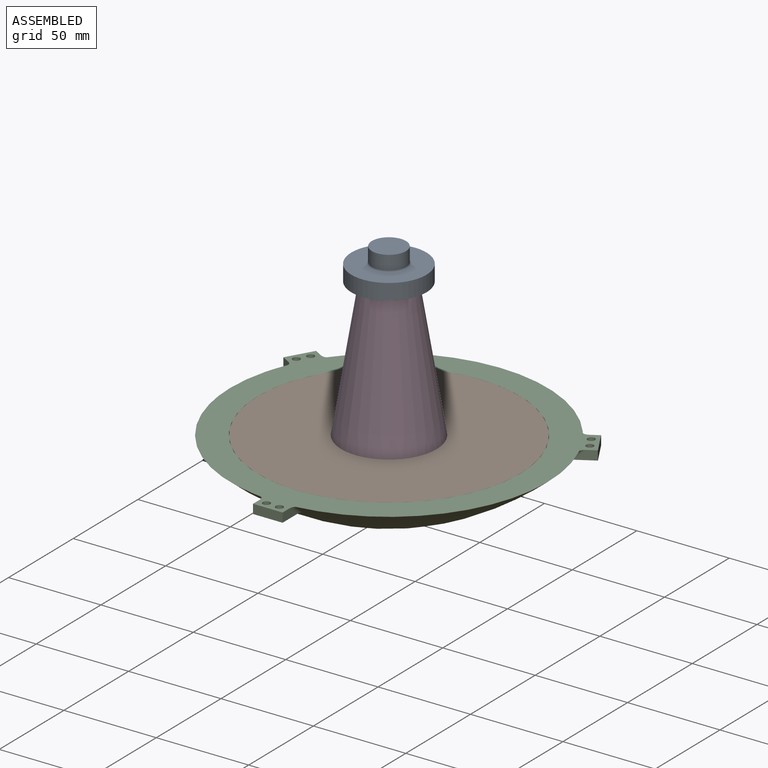
[diagram: assembled view]
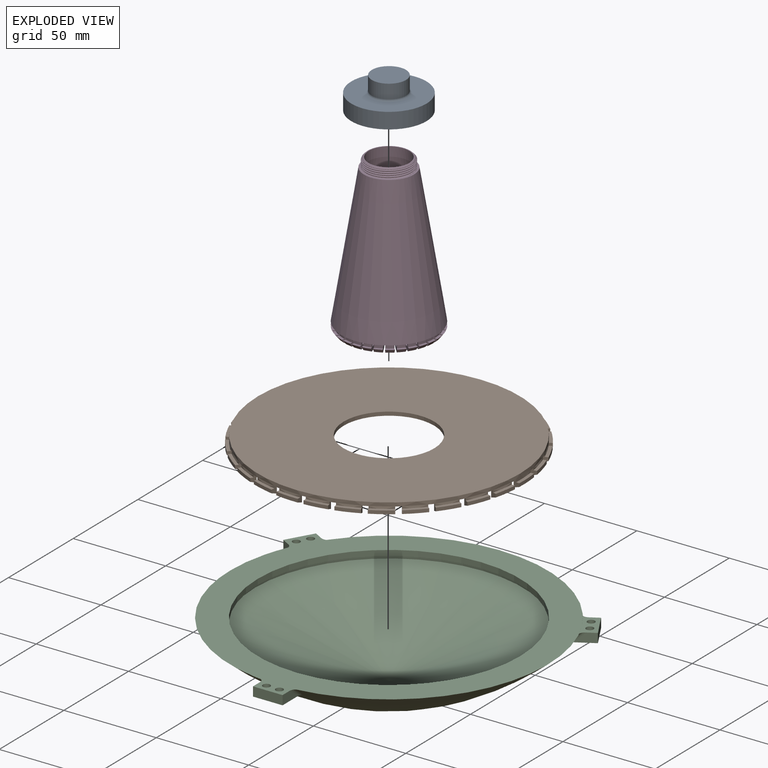
[diagram: exploded view]
GUIDED TOUR — MATED ASSEMBLY (Onshape document 2bd8bb5eee0992aa9b18f840, AutoMate assembly 2bd8bb5eee0992aa9b18f840_a4a9e9482b0b2e8ed73c5ef7_c659ca8708502da03365f9ae_default)

This assembly has 4 components, labeled P0..P3 below (a component is one placed occurrence of a part; the same part can appear more than once), held together by 3 mates. A mate is a constraint between two components; its type names the relative motion it leaves free:
  FASTENED — locks the two components together rigidly (no relative motion).
Axis/direction vectors are unit vectors and 'through' points are millimeter coordinates, both in the assembly's world frame.

MATES
  1. FASTENED "Fastened 1": P1 <-> P2, direction (0.000, 0.000, 1.000) through (9.21, -4.73, 26.35) mm
  2. FASTENED "Fastened 2": P3 <-> P1, direction (0.000, 0.000, -1.000) through (9.21, -4.73, 26.35) mm
  3. FASTENED "Fastened 3": P0 <-> P3, direction (0.000, 0.000, -1.000) through (9.19, -4.73, 101.55) mm

ASSEMBLY ORDER
  1. P1 — the base component [order heuristic]
  2. P2 — core [order heuristic]
  3. P3 [order verified]
  4. P0 [order verified]
(P0, P3 verified with a relaxed clearance tolerance: the source model stores slight part interference there.)
Order-tag legend:
  [order verified] — this step's position reverses a verified removal order: the component was checked to insert without passing through the ones already placed.
  [order heuristic] — the first 2 components form the assembly's core: parts whose collision-free extraction could not be verified, listed in mate-graph order.

Of the 4 components, 1 carries the full construction recipe — the FeatureScript program that regenerates the part's solid from scratch; the rest are supplied as boundary geometry only.
Each toured component is shown spotlighted twice — in the assembled view, then in the exploded view, where a leader line traces a displaced component back to its assembled socket (saturated green if recipe-attached, orange if geometry-only; every other component desaturated gray) — followed by its recipe or geometry summary and the mates that hold it.
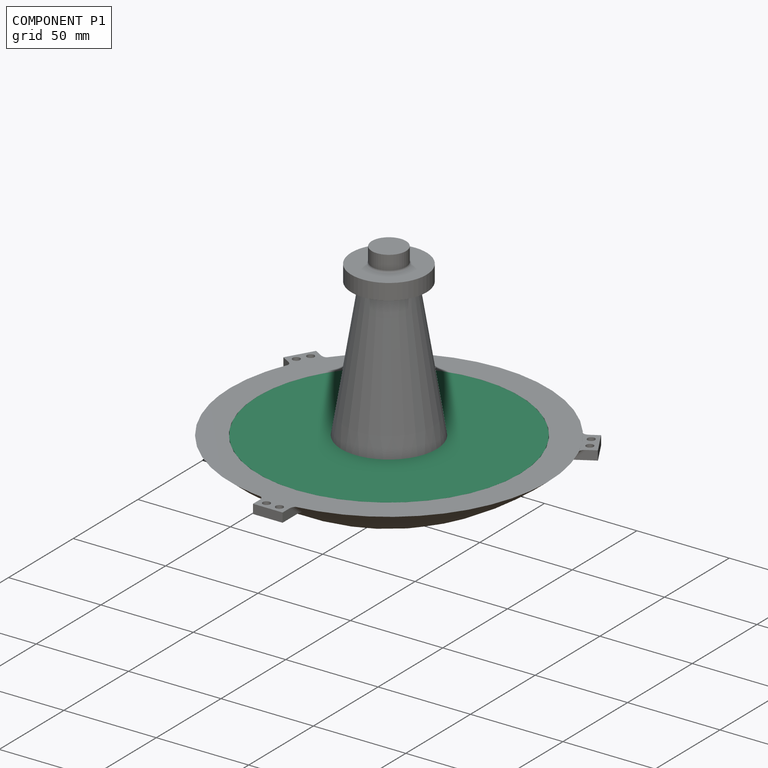
[diagram: component P1 — assembled]
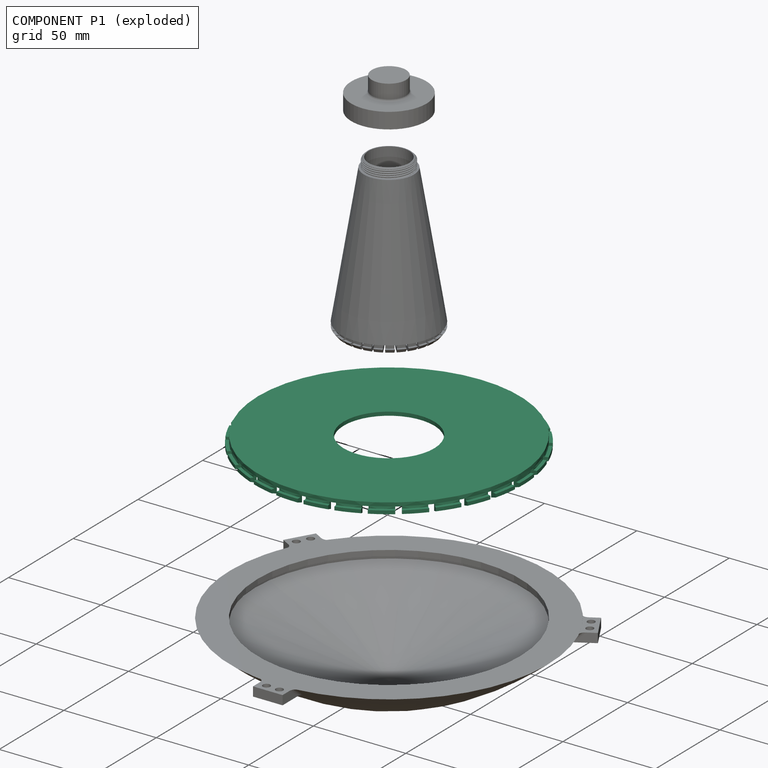
[diagram: component P1 — exploded]
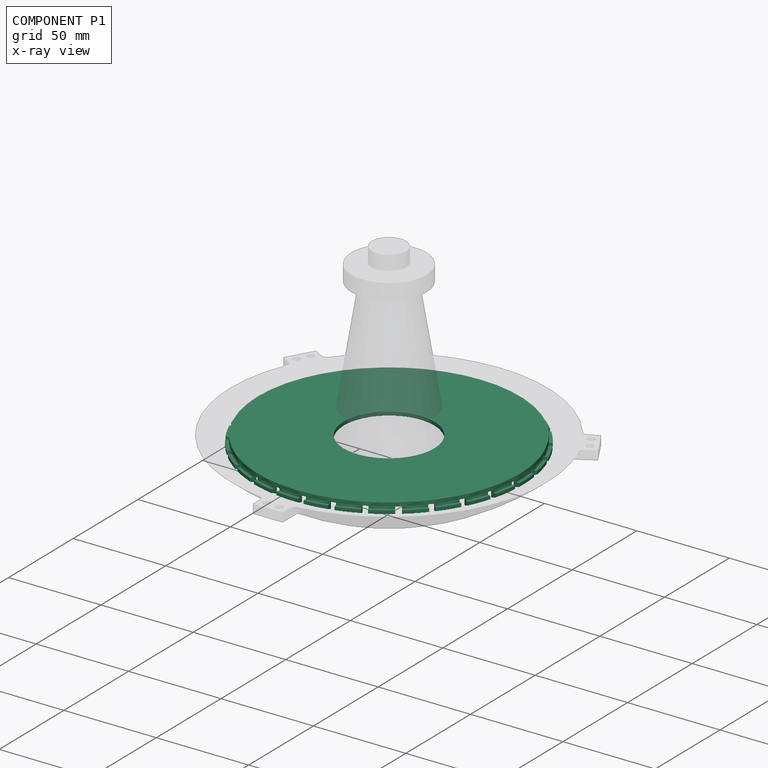
[diagram: component P1 — x-ray view]
COMPONENT P1 — recipe-attached (CADFS 00196665, mesh-verified: the recipe's output STEP matches this component's geometry to below the mesh-comparison resolution (tessellation chordal tolerance ~0.309 mm)).
Held by: FASTENED mate "Fastened 1" to P2; FASTENED mate "Fastened 2" to P3.
Construction recipe (FeatureScript — the CAD program that rebuilds this solid; sketch coordinates are in the units given by the * unit suffixes, e.g. mm):

FeatureScript 1511;
import(path : "onshape/std/geometry.fs", version : "1511.0");
import(path : "onshape/std/common.fs", version : "1511.0");
const mm = millimeter;
const VERTEX = EntityType.VERTEX;
const EDGE = EntityType.EDGE;
const FACE = EntityType.FACE;
const BODY = EntityType.BODY;
function v(x, y){return vector(x, y);}
function OD(order){return orderDisambiguation(order);}
function OSD(set){return originalSetDisambiguation(set);}
function TD(topology){return topologyDisambiguation(topology);}
function TDD(query){return trueDependencyDisambiguation(query);}
function sQuery(a, b, c) {return sketchEntityQuery(a, b, c);}

annotation { "Feature Type Name" : "Feature", "Feature Type Description" : "" }
export const myFeature = defineFeature(function(context is Context, id is Id, definition is map)
    precondition{}
    {
        {
            var Q0;
            Q0=qCreatedBy(makeId("Right.planeOp"),FACE);
            var sketch = newSketch(context, id + "F0", { "sketchPlane" : qUnion([Q0])});
            skLineSegment(sketch, "E0", {"start": v(0, 85.68) * mm, "end": v(0, -86.46) * mm, "construction": true});
            skLineSegment(sketch, "E1.bottom", {"start": v(0, 0) * mm, "end": v(70.9, 0) * mm});
            skLineSegment(sketch, "E1.top", {"start": v(0, 2) * mm, "end": v(69.4, 2) * mm});
            skLineSegment(sketch, "E1.left", {"start": v(0, 0) * mm, "end": v(0, 2) * mm});
            skLineSegment(sketch, "E1.right", {"start": v(70.9, 0) * mm, "end": v(70.9, 2) * mm});
            skLineSegment(sketch, "E2.bottom", {"start": v(70.9, 0) * mm, "end": v(69.4, 0) * mm});
            skLineSegment(sketch, "E2.left", {"start": v(70.9, 0) * mm, "end": v(70.9, 3.1) * mm});
            skLineSegment(sketch, "E3.top", {"start": v(70.9, 3.1) * mm, "end": v(72.7, 3.1) * mm});
            skLineSegment(sketch, "E4", {"start": v(72.7, 3.1) * mm, "end": v(72.7, 4.9) * mm});
            skLineSegment(sketch, "E5", {"start": v(72.7, 4.9) * mm, "end": v(69.4, 6.08) * mm});
            skLineSegment(sketch, "E6", {"start": v(69.4, 2) * mm, "end": v(69.4, 6.08) * mm});
            skSolve(sketch);
        }
        {
            var Q0;
            Q0 = qSketchRegion(id + "F0", true);
            var Q1;
            Q1=sQuery(id+"F0.wireOp",EDGE,"E0");
            revolve(context, id + "F1", {"entities" : qUnion([Q0]), "axis" : qUnion([Q1]), "revolveType" : RevolveType.FULL});
        }
        {
            var Q0;
            Q0=qCreatedBy(makeId("Top.planeOp"),FACE);
            var sketch = newSketch(context, id + "F2", { "sketchPlane" : qUnion([Q0])});
            skPoint(sketch, "E7", {"position": v(0, 0) * mm});
            skSolve(sketch);
        }
        {
            var Q0;
            Q0=sQuery(id+"F2.wireOp",VERTEX,"E7");
            var Q1;
            Q1=makeQuery(id+"F1.opRevolve","SWEPT_BODY",BODY,{"disambiguationData":[OSD([sQuery(id+"F0.wireOp",EDGE,"E1.bottom"),sQuery(id+"F0.wireOp",EDGE,"E1.top"),sQuery(id+"F0.wireOp",EDGE,"E1.left"),sQuery(id+"F0.wireOp",EDGE,"E2.bottom"),sQuery(id+"F0.wireOp",EDGE,"E2.top"),sQuery(id+"F0.wireOp",EDGE,"E2.left"),sQuery(id+"F0.wireOp",EDGE,"E2.right"),sQuery(id+"F0.wireOp",EDGE,"E3.top"),sQuery(id+"F0.wireOp",EDGE,"KGbcwsE4-q3BG-QgxK-r2mv-6eEFrDaZc8Cp"),sQuery(id+"F0.wireOp",EDGE,"3cbed7ed-6242-46d1-abfa-7344cad13317.trimOffspring")])]});
            hole(context, id + "F3", {"style" : HoleStyle.SIMPLE, "endStyle" : HoleEndStyle.BLIND, "oppositeDirection" : true, "holeDiameter" : 49 * mm, "holeDepth" : 100 * mm, "startFromSketch" : true, "locations" : qUnion([Q0]), "scope" : qUnion([Q1])});
        }
        {
            var Q0;
            Q0=makeQuery(id+"F1.opRevolve","SWEPT_FACE",FACE,{"disambiguationData":[OSD([sQuery(id+"F0.wireOp",EDGE,"E1.top")])]});
            var sketch = newSketch(context, id + "F4", { "sketchPlane" : qUnion([Q0])});
            skLineSegment(sketch, "E8.bottom", {"start": v(-4.53, -77.52) * mm, "end": v(-1.53, -77.52) * mm});
            skLineSegment(sketch, "E8.top", {"start": v(-4.53, -61.97) * mm, "end": v(-1.53, -61.97) * mm});
            skLineSegment(sketch, "E8.left", {"start": v(-4.53, -77.52) * mm, "end": v(-4.53, -61.97) * mm});
            skLineSegment(sketch, "E8.right", {"start": v(-1.53, -77.52) * mm, "end": v(-1.53, -61.97) * mm});
            skLineSegment(sketch, "E9.1.0", {"start": v(11.7, -76.77) * mm, "end": v(8.46, -61.56) * mm});
            skLineSegment(sketch, "E9.1.1", {"start": v(14.63, -76.15) * mm, "end": v(11.4, -60.94) * mm});
            skLineSegment(sketch, "E9.1.2", {"start": v(11.7, -76.77) * mm, "end": v(14.63, -76.15) * mm});
            skLineSegment(sketch, "E9.1.3", {"start": v(8.46, -61.56) * mm, "end": v(11.4, -60.94) * mm});
            skLineSegment(sketch, "E9.2.0", {"start": v(27.4, -72.66) * mm, "end": v(21.07, -58.46) * mm});
            skLineSegment(sketch, "E9.2.1", {"start": v(30.14, -71.44) * mm, "end": v(23.81, -57.24) * mm});
            skLineSegment(sketch, "E9.2.2", {"start": v(27.4, -72.66) * mm, "end": v(30.14, -71.44) * mm});
            skLineSegment(sketch, "E9.2.3", {"start": v(21.07, -58.46) * mm, "end": v(23.81, -57.24) * mm});
            skLineSegment(sketch, "E9.3.0", {"start": v(41.9, -65.38) * mm, "end": v(32.77, -52.8) * mm});
            skLineSegment(sketch, "E9.3.1", {"start": v(44.33, -63.62) * mm, "end": v(35.2, -51.03) * mm});
            skLineSegment(sketch, "E9.3.2", {"start": v(41.9, -65.38) * mm, "end": v(44.33, -63.62) * mm});
            skLineSegment(sketch, "E9.3.3", {"start": v(32.77, -52.8) * mm, "end": v(35.2, -51.03) * mm});
            skLineSegment(sketch, "E9.4.0", {"start": v(54.58, -55.24) * mm, "end": v(43.03, -44.83) * mm});
            skLineSegment(sketch, "E9.4.1", {"start": v(56.6, -53) * mm, "end": v(45.03, -42.6) * mm});
            skLineSegment(sketch, "E9.4.2", {"start": v(54.58, -55.24) * mm, "end": v(56.6, -53) * mm});
            skLineSegment(sketch, "E9.4.3", {"start": v(43.03, -44.83) * mm, "end": v(45.03, -42.6) * mm});
            skLineSegment(sketch, "E9.5.0", {"start": v(64.87, -42.68) * mm, "end": v(51.4, -34.9) * mm});
            skLineSegment(sketch, "E9.5.1", {"start": v(66.37, -40.08) * mm, "end": v(52.9, -32.3) * mm});
            skLineSegment(sketch, "E9.5.2", {"start": v(64.87, -42.68) * mm, "end": v(66.37, -40.08) * mm});
            skLineSegment(sketch, "E9.5.3", {"start": v(51.4, -34.9) * mm, "end": v(52.9, -32.3) * mm});
            skLineSegment(sketch, "E9.6.0", {"start": v(72.33, -28.26) * mm, "end": v(57.54, -23.46) * mm});
            skLineSegment(sketch, "E9.6.1", {"start": v(73.26, -25.4) * mm, "end": v(58.47, -20.6) * mm});
            skLineSegment(sketch, "E9.6.2", {"start": v(72.33, -28.26) * mm, "end": v(73.26, -25.4) * mm});
            skLineSegment(sketch, "E9.6.3", {"start": v(57.54, -23.46) * mm, "end": v(58.47, -20.6) * mm});
            skLineSegment(sketch, "E9.7.0", {"start": v(76.63, -12.6) * mm, "end": v(61.16, -10.98) * mm});
            skLineSegment(sketch, "E9.7.1", {"start": v(76.94, -9.62) * mm, "end": v(61.47, -8) * mm});
            skLineSegment(sketch, "E9.7.2", {"start": v(76.63, -12.6) * mm, "end": v(76.94, -9.62) * mm});
            skLineSegment(sketch, "E9.7.3", {"start": v(61.16, -10.98) * mm, "end": v(61.47, -8) * mm});
            skLineSegment(sketch, "E9.8.0", {"start": v(77.57, 3.6) * mm, "end": v(62.1, 1.98) * mm});
            skLineSegment(sketch, "E9.8.1", {"start": v(77.26, 6.59) * mm, "end": v(61.8, 4.96) * mm});
            skLineSegment(sketch, "E9.8.2", {"start": v(77.57, 3.6) * mm, "end": v(77.26, 6.59) * mm});
            skLineSegment(sketch, "E9.8.3", {"start": v(62.1, 1.98) * mm, "end": v(61.8, 4.96) * mm});
            skLineSegment(sketch, "E9.9.0", {"start": v(75.13, 19.65) * mm, "end": v(60.34, 14.85) * mm});
            skLineSegment(sketch, "E9.9.1", {"start": v(74.2, 22.5) * mm, "end": v(59.41, 17.7) * mm});
            skLineSegment(sketch, "E9.9.2", {"start": v(75.13, 19.65) * mm, "end": v(74.2, 22.5) * mm});
            skLineSegment(sketch, "E9.9.3", {"start": v(60.34, 14.85) * mm, "end": v(59.41, 17.7) * mm});
            skLineSegment(sketch, "E9.10.0", {"start": v(69.4, 34.84) * mm, "end": v(55.93, 27.07) * mm});
            skLineSegment(sketch, "E9.10.1", {"start": v(67.9, 37.44) * mm, "end": v(54.43, 29.66) * mm});
            skLineSegment(sketch, "E9.10.2", {"start": v(69.4, 34.84) * mm, "end": v(67.9, 37.44) * mm});
            skLineSegment(sketch, "E9.10.3", {"start": v(55.93, 27.07) * mm, "end": v(54.43, 29.66) * mm});
            skLineSegment(sketch, "E9.11.0", {"start": v(60.64, 48.51) * mm, "end": v(49.08, 38.1) * mm});
            skLineSegment(sketch, "E9.11.1", {"start": v(58.63, 50.74) * mm, "end": v(47.08, 40.33) * mm});
            skLineSegment(sketch, "E9.11.2", {"start": v(60.64, 48.51) * mm, "end": v(58.63, 50.74) * mm});
            skLineSegment(sketch, "E9.11.3", {"start": v(49.08, 38.1) * mm, "end": v(47.08, 40.33) * mm});
            skLineSegment(sketch, "E9.12.0", {"start": v(49.23, 60.06) * mm, "end": v(40.09, 47.48) * mm});
            skLineSegment(sketch, "E9.12.1", {"start": v(46.8, 61.82) * mm, "end": v(37.66, 49.24) * mm});
            skLineSegment(sketch, "E9.12.2", {"start": v(49.23, 60.06) * mm, "end": v(46.8, 61.82) * mm});
            skLineSegment(sketch, "E9.12.3", {"start": v(40.09, 47.48) * mm, "end": v(37.66, 49.24) * mm});
            skLineSegment(sketch, "E9.13.0", {"start": v(35.67, 68.98) * mm, "end": v(29.34, 54.77) * mm});
            skLineSegment(sketch, "E9.13.1", {"start": v(32.93, 70.2) * mm, "end": v(26.6, 56) * mm});
            skLineSegment(sketch, "E9.13.2", {"start": v(35.67, 68.98) * mm, "end": v(32.93, 70.2) * mm});
            skLineSegment(sketch, "E9.13.3", {"start": v(29.34, 54.77) * mm, "end": v(26.6, 56) * mm});
            skLineSegment(sketch, "E9.14.0", {"start": v(20.55, 74.89) * mm, "end": v(17.31, 59.68) * mm});
            skLineSegment(sketch, "E9.14.1", {"start": v(17.61, 75.51) * mm, "end": v(14.38, 60.3) * mm});
            skLineSegment(sketch, "E9.14.2", {"start": v(20.55, 74.89) * mm, "end": v(17.61, 75.51) * mm});
            skLineSegment(sketch, "E9.14.3", {"start": v(17.31, 59.68) * mm, "end": v(14.38, 60.3) * mm});
            skLineSegment(sketch, "E9.15.0", {"start": v(4.53, 77.52) * mm, "end": v(4.53, 61.97) * mm});
            skLineSegment(sketch, "E9.15.1", {"start": v(1.53, 77.52) * mm, "end": v(1.53, 61.97) * mm});
            skLineSegment(sketch, "E9.15.2", {"start": v(4.53, 77.52) * mm, "end": v(1.53, 77.52) * mm});
            skLineSegment(sketch, "E9.15.3", {"start": v(4.53, 61.97) * mm, "end": v(1.53, 61.97) * mm});
            skLineSegment(sketch, "E9.16.0", {"start": v(-11.7, 76.77) * mm, "end": v(-8.46, 61.56) * mm});
            skLineSegment(sketch, "E9.16.1", {"start": v(-14.63, 76.15) * mm, "end": v(-11.4, 60.94) * mm});
            skLineSegment(sketch, "E9.16.2", {"start": v(-11.7, 76.77) * mm, "end": v(-14.63, 76.15) * mm});
            skLineSegment(sketch, "E9.16.3", {"start": v(-8.46, 61.56) * mm, "end": v(-11.4, 60.94) * mm});
            skLineSegment(sketch, "E9.17.0", {"start": v(-27.4, 72.66) * mm, "end": v(-21.07, 58.46) * mm});
            skLineSegment(sketch, "E9.17.1", {"start": v(-30.14, 71.44) * mm, "end": v(-23.81, 57.24) * mm});
            skLineSegment(sketch, "E9.17.2", {"start": v(-27.4, 72.66) * mm, "end": v(-30.14, 71.44) * mm});
            skLineSegment(sketch, "E9.17.3", {"start": v(-21.07, 58.46) * mm, "end": v(-23.81, 57.24) * mm});
            skLineSegment(sketch, "E9.18.0", {"start": v(-41.9, 65.38) * mm, "end": v(-32.77, 52.8) * mm});
            skLineSegment(sketch, "E9.18.1", {"start": v(-44.33, 63.62) * mm, "end": v(-35.2, 51.03) * mm});
            skLineSegment(sketch, "E9.18.2", {"start": v(-41.9, 65.38) * mm, "end": v(-44.33, 63.62) * mm});
            skLineSegment(sketch, "E9.18.3", {"start": v(-32.77, 52.8) * mm, "end": v(-35.2, 51.03) * mm});
            skLineSegment(sketch, "E9.19.0", {"start": v(-54.58, 55.24) * mm, "end": v(-43.03, 44.83) * mm});
            skLineSegment(sketch, "E9.19.1", {"start": v(-56.6, 53) * mm, "end": v(-45.03, 42.6) * mm});
            skLineSegment(sketch, "E9.19.2", {"start": v(-54.58, 55.24) * mm, "end": v(-56.6, 53) * mm});
            skLineSegment(sketch, "E9.19.3", {"start": v(-43.03, 44.83) * mm, "end": v(-45.03, 42.6) * mm});
            skLineSegment(sketch, "E9.20.0", {"start": v(-64.87, 42.68) * mm, "end": v(-51.4, 34.9) * mm});
            skLineSegment(sketch, "E9.20.1", {"start": v(-66.37, 40.08) * mm, "end": v(-52.9, 32.3) * mm});
            skLineSegment(sketch, "E9.20.2", {"start": v(-64.87, 42.68) * mm, "end": v(-66.37, 40.08) * mm});
            skLineSegment(sketch, "E9.20.3", {"start": v(-51.4, 34.9) * mm, "end": v(-52.9, 32.3) * mm});
            skLineSegment(sketch, "E9.21.0", {"start": v(-72.33, 28.26) * mm, "end": v(-57.54, 23.46) * mm});
            skLineSegment(sketch, "E9.21.1", {"start": v(-73.26, 25.4) * mm, "end": v(-58.47, 20.6) * mm});
            skLineSegment(sketch, "E9.21.2", {"start": v(-72.33, 28.26) * mm, "end": v(-73.26, 25.4) * mm});
            skLineSegment(sketch, "E9.21.3", {"start": v(-57.54, 23.46) * mm, "end": v(-58.47, 20.6) * mm});
            skLineSegment(sketch, "E9.22.0", {"start": v(-76.63, 12.6) * mm, "end": v(-61.16, 10.98) * mm});
            skLineSegment(sketch, "E9.22.1", {"start": v(-76.94, 9.62) * mm, "end": v(-61.47, 8) * mm});
            skLineSegment(sketch, "E9.22.2", {"start": v(-76.63, 12.6) * mm, "end": v(-76.94, 9.62) * mm});
            skLineSegment(sketch, "E9.22.3", {"start": v(-61.16, 10.98) * mm, "end": v(-61.47, 8) * mm});
            skLineSegment(sketch, "E9.23.0", {"start": v(-77.57, -3.6) * mm, "end": v(-62.1, -1.98) * mm});
            skLineSegment(sketch, "E9.23.1", {"start": v(-77.26, -6.59) * mm, "end": v(-61.8, -4.96) * mm});
            skLineSegment(sketch, "E9.23.2", {"start": v(-77.57, -3.6) * mm, "end": v(-77.26, -6.59) * mm});
            skLineSegment(sketch, "E9.23.3", {"start": v(-62.1, -1.98) * mm, "end": v(-61.8, -4.96) * mm});
            skLineSegment(sketch, "E9.24.0", {"start": v(-75.13, -19.65) * mm, "end": v(-60.34, -14.85) * mm});
            skLineSegment(sketch, "E9.24.1", {"start": v(-74.2, -22.5) * mm, "end": v(-59.41, -17.7) * mm});
            skLineSegment(sketch, "E9.24.2", {"start": v(-75.13, -19.65) * mm, "end": v(-74.2, -22.5) * mm});
            skLineSegment(sketch, "E9.24.3", {"start": v(-60.34, -14.85) * mm, "end": v(-59.41, -17.7) * mm});
            skLineSegment(sketch, "E9.25.0", {"start": v(-69.4, -34.84) * mm, "end": v(-55.93, -27.07) * mm});
            skLineSegment(sketch, "E9.25.1", {"start": v(-67.9, -37.44) * mm, "end": v(-54.43, -29.66) * mm});
            skLineSegment(sketch, "E9.25.2", {"start": v(-69.4, -34.84) * mm, "end": v(-67.9, -37.44) * mm});
            skLineSegment(sketch, "E9.25.3", {"start": v(-55.93, -27.07) * mm, "end": v(-54.43, -29.66) * mm});
            skLineSegment(sketch, "E9.26.0", {"start": v(-60.64, -48.51) * mm, "end": v(-49.08, -38.1) * mm});
            skLineSegment(sketch, "E9.26.1", {"start": v(-58.63, -50.74) * mm, "end": v(-47.08, -40.33) * mm});
            skLineSegment(sketch, "E9.26.2", {"start": v(-60.64, -48.51) * mm, "end": v(-58.63, -50.74) * mm});
            skLineSegment(sketch, "E9.26.3", {"start": v(-49.08, -38.1) * mm, "end": v(-47.08, -40.33) * mm});
            skLineSegment(sketch, "E9.27.0", {"start": v(-49.23, -60.06) * mm, "end": v(-40.09, -47.48) * mm});
            skLineSegment(sketch, "E9.27.1", {"start": v(-46.8, -61.82) * mm, "end": v(-37.66, -49.24) * mm});
            skLineSegment(sketch, "E9.27.2", {"start": v(-49.23, -60.06) * mm, "end": v(-46.8, -61.82) * mm});
            skLineSegment(sketch, "E9.27.3", {"start": v(-40.09, -47.48) * mm, "end": v(-37.66, -49.24) * mm});
            skLineSegment(sketch, "E9.28.0", {"start": v(-35.67, -68.98) * mm, "end": v(-29.34, -54.77) * mm});
            skLineSegment(sketch, "E9.28.1", {"start": v(-32.93, -70.2) * mm, "end": v(-26.6, -56) * mm});
            skLineSegment(sketch, "E9.28.2", {"start": v(-35.67, -68.98) * mm, "end": v(-32.93, -70.2) * mm});
            skLineSegment(sketch, "E9.28.3", {"start": v(-29.34, -54.77) * mm, "end": v(-26.6, -56) * mm});
            skLineSegment(sketch, "E9.29.0", {"start": v(-20.55, -74.89) * mm, "end": v(-17.31, -59.68) * mm});
            skLineSegment(sketch, "E9.29.1", {"start": v(-17.61, -75.51) * mm, "end": v(-14.38, -60.3) * mm});
            skLineSegment(sketch, "E9.29.2", {"start": v(-20.55, -74.89) * mm, "end": v(-17.61, -75.51) * mm});
            skLineSegment(sketch, "E9.29.3", {"start": v(-17.31, -59.68) * mm, "end": v(-14.38, -60.3) * mm});
            skPoint(sketch, "E9.center", {"position": v(0, 0) * mm});
            skSolve(sketch);
        }
        {
            var Q0;
            Q0 = qSketchRegion(id + "F4", true);
            extrude(context, id + "F5", {"entities" : qUnion([Q0]), "operationType" : NewBodyOperationType.REMOVE, "depth" : 25 * mm});
        }
    });
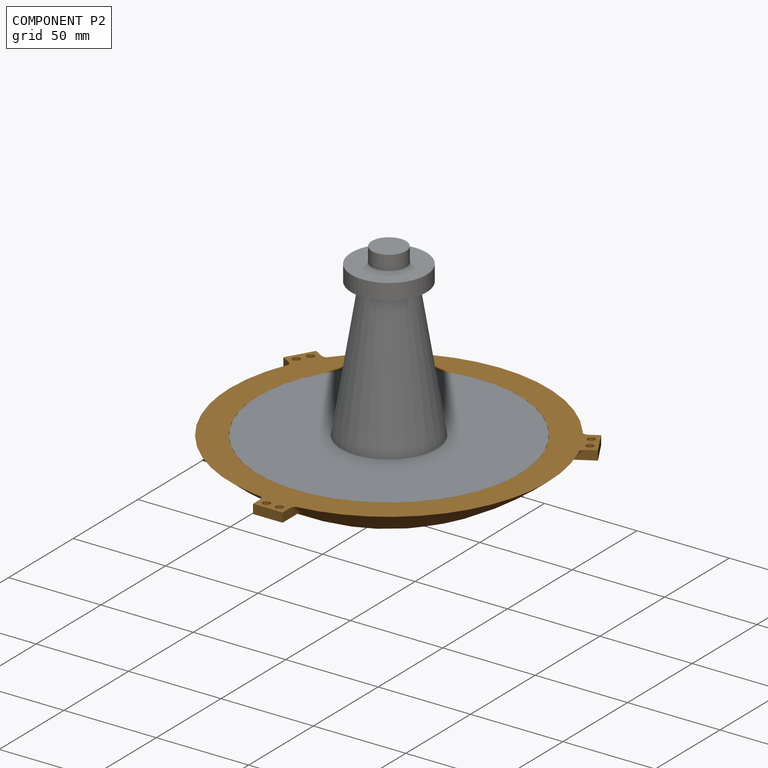
[diagram: component P2 — assembled]
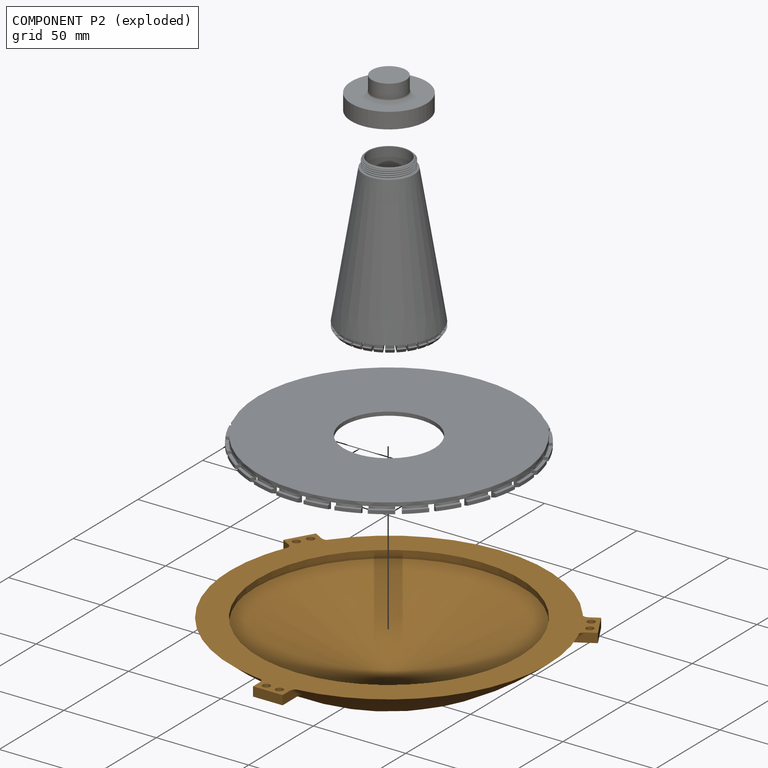
[diagram: component P2 — exploded]
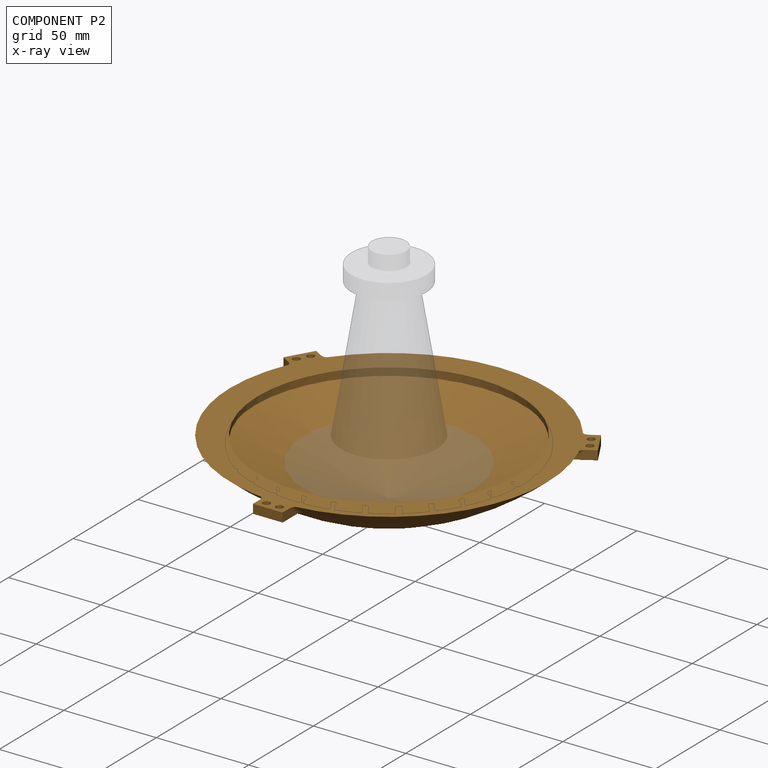
[diagram: component P2 — x-ray view]
COMPONENT P2 — geometry summary (no construction recipe available for this part):
  bounding box: 181.9 x 173.6 x 42.2 mm
  B-rep topology: 1 solid, 36 faces, 193 edges
  volume: 175988 mm^3 (13% of its bounding box)
  symmetry: mirror-symmetric across its x mid-plane
Held by: FASTENED mate "Fastened 1" to P1.
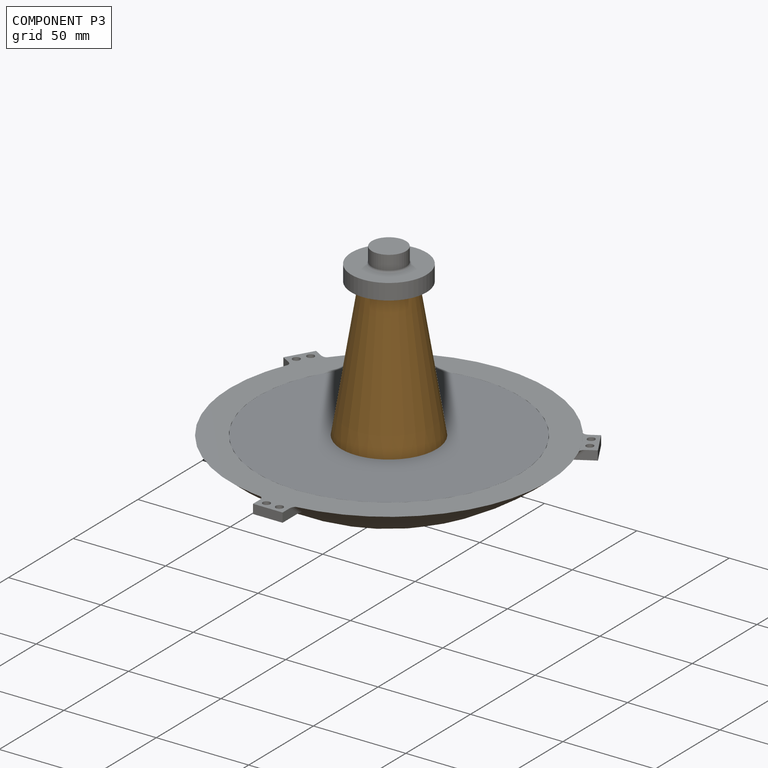
[diagram: component P3 — assembled]
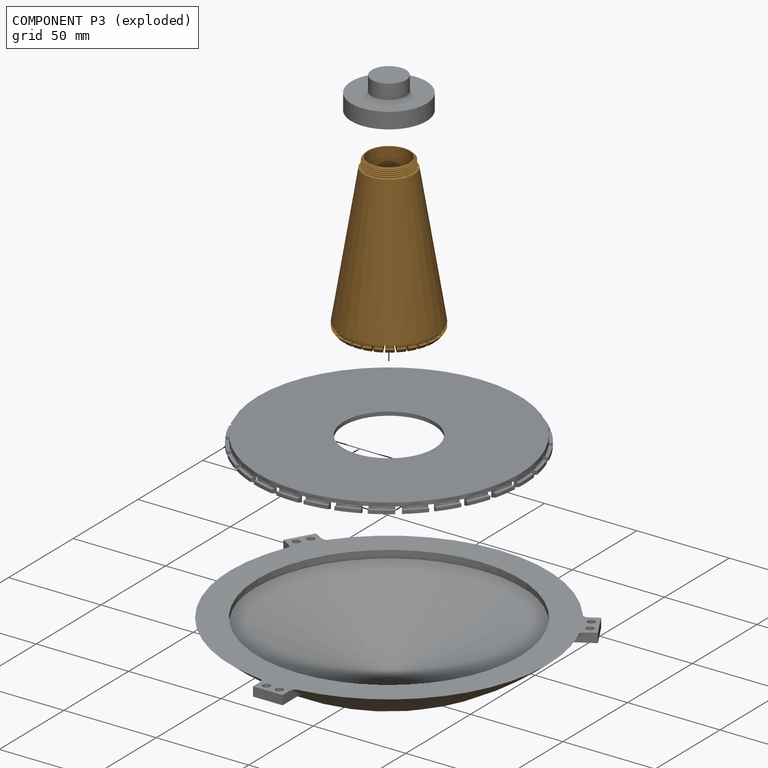
[diagram: component P3 — exploded]
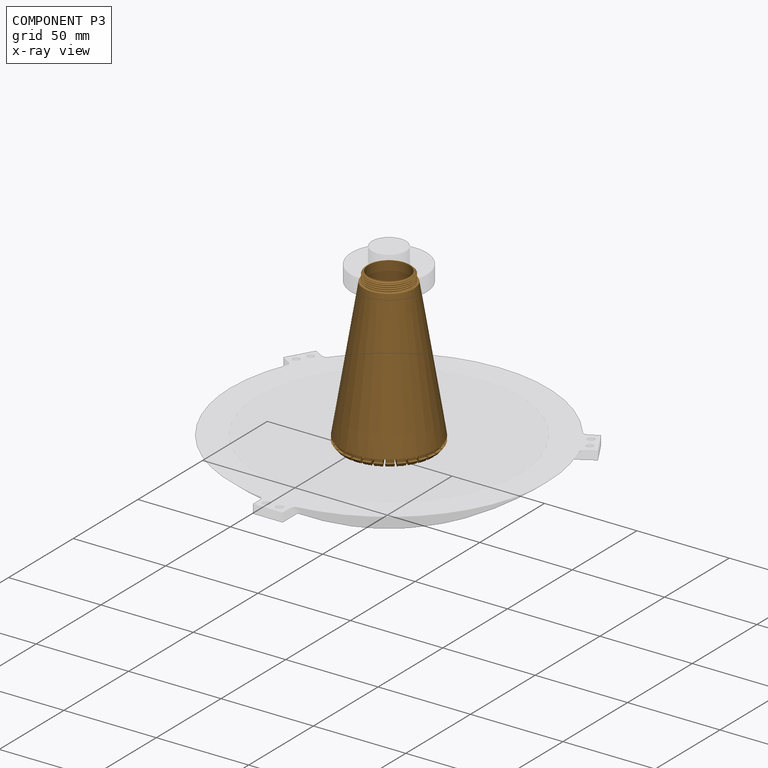
[diagram: component P3 — x-ray view]
COMPONENT P3 — geometry summary (no construction recipe available for this part):
  bounding box: 84.6 x 51.9 x 51.9 mm
  B-rep topology: 1 solid, 283 faces, 1564 edges
  volume: 24201 mm^3 (11% of its bounding box)
  symmetry: 6-fold rotationally symmetric about the z axis; mirror-symmetric across its x mid-plane, y mid-plane
Held by: FASTENED mate "Fastened 2" to P1; FASTENED mate "Fastened 3" to P0.
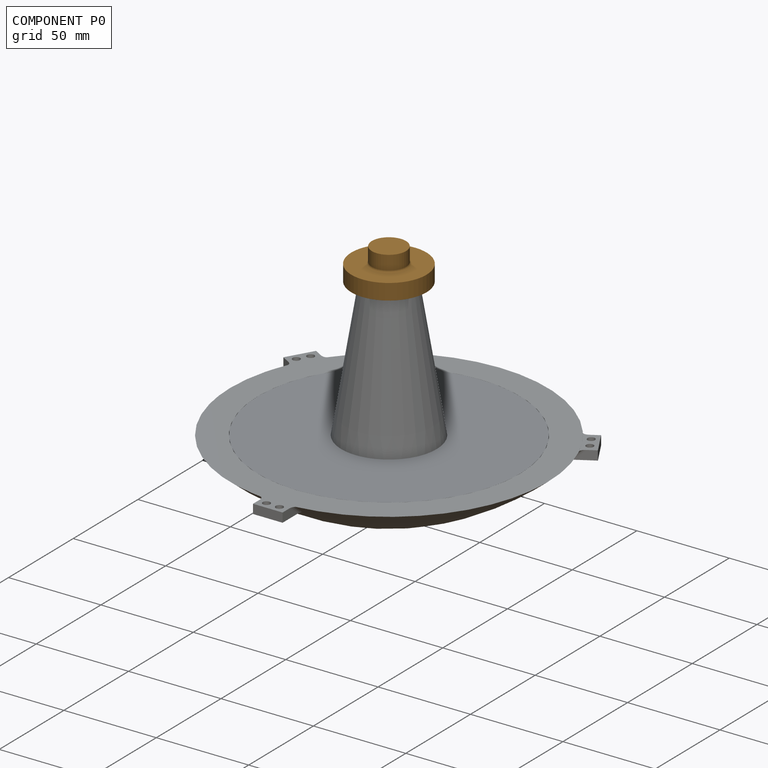
[diagram: component P0 — assembled]
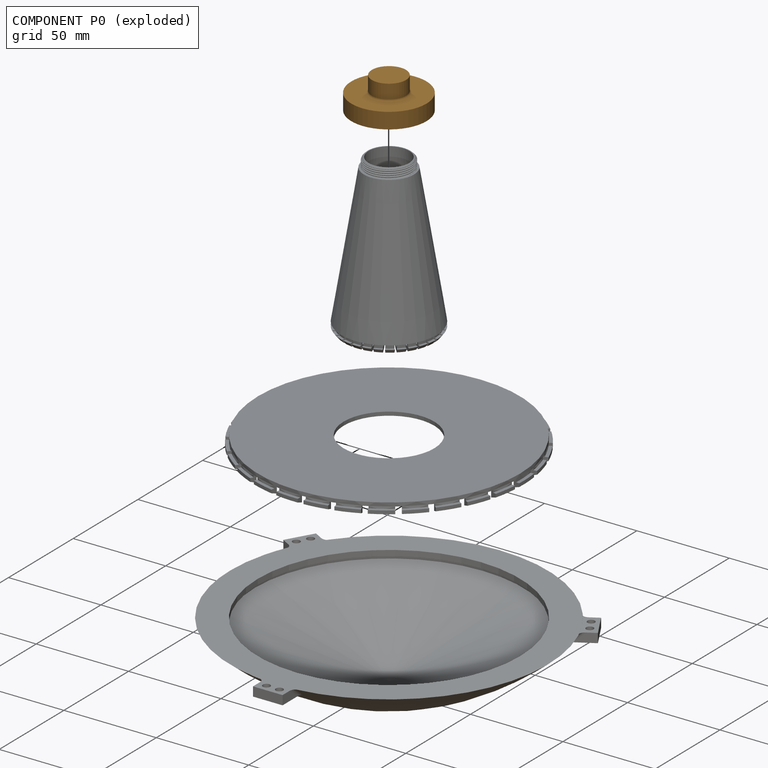
[diagram: component P0 — exploded]
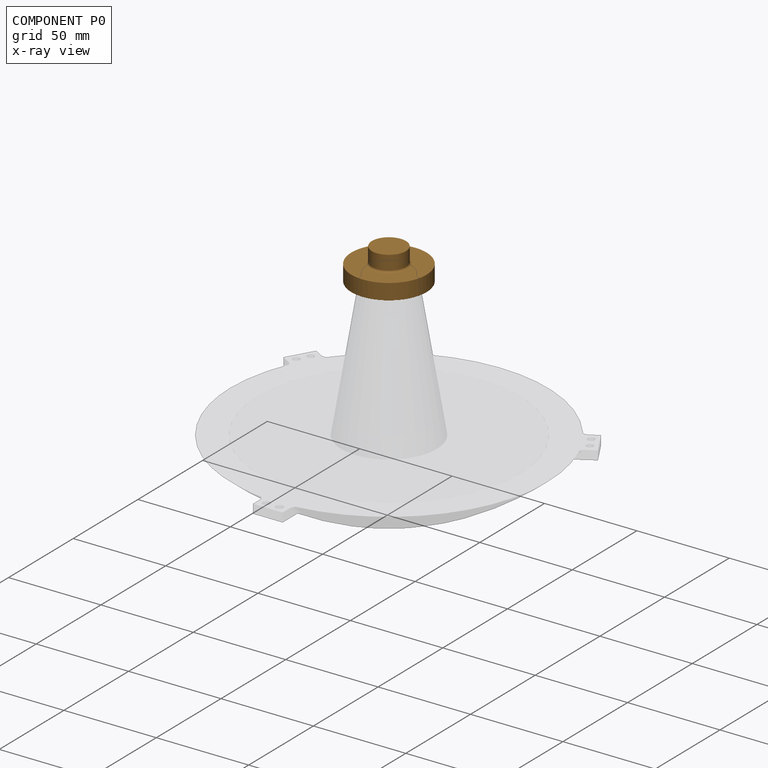
[diagram: component P0 — x-ray view]
COMPONENT P0 — geometry summary (no construction recipe available for this part):
  bounding box: 40.7 x 40.7 x 17.2 mm
  B-rep topology: 1 solid, 14 faces, 63 edges
  volume: 9779 mm^3 (34% of its bounding box)
  symmetry: revolution-symmetric about the z axis through its bounding-box center
Held by: FASTENED mate "Fastened 3" to P3.
PROVENANCE & LICENSES
Assembly (occurrences, transforms, mates, per-part STEP geometry): AutoMate dataset, Zenodo record 7776208, CC0.
Construction recipes: CADFS (HuggingFace VladPyatov/CADFS, CC-BY-4.0, layered over the ABC dataset), FeatureScript reconstruction programs keyed by ABC model id.
Join: ABC meta listings map ABC model id -> Onshape documentId; within a shared document, parts are matched by geometric signature (bounding-box dims + volume at 0.1% relative tolerance, exact B-rep face/solid counts).
Verification: 1 of this assembly's 4 components carries a recipe attachment, and every attachment is mesh-verified: the CADFS STEP and the AutoMate member STEP were compared as meshes in their shared local frame (symmetric sampled-point-to-mesh distance); worst across the 1 attachment: below the mesh-comparison resolution (tessellation chordal tolerance ~0.309 mm) on a 206 mm part.
Renders: orthographic iso camera (az 35 / el 25); the floor grid conveys scale (grid pitch printed in each image; no ruler). In the exploded view each component is displaced by its stored offset vector: the offsets alone carry the explosion direction (mate normal/axis signs are not orientation cues and do not encode it), and separation distances are assigned per mate-chain, not proportionally to assembly-order depth.
